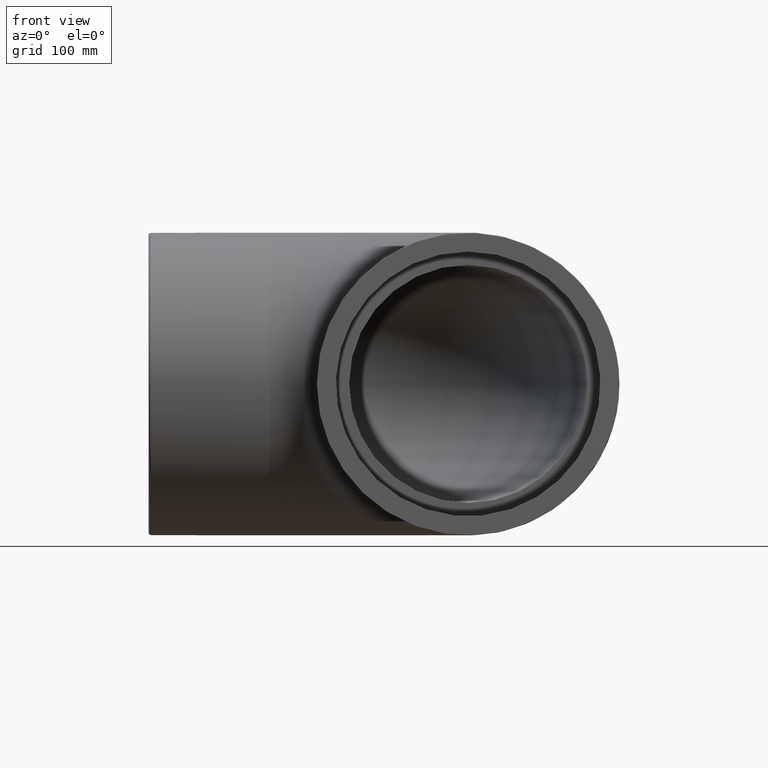
[diagram: clean part render]
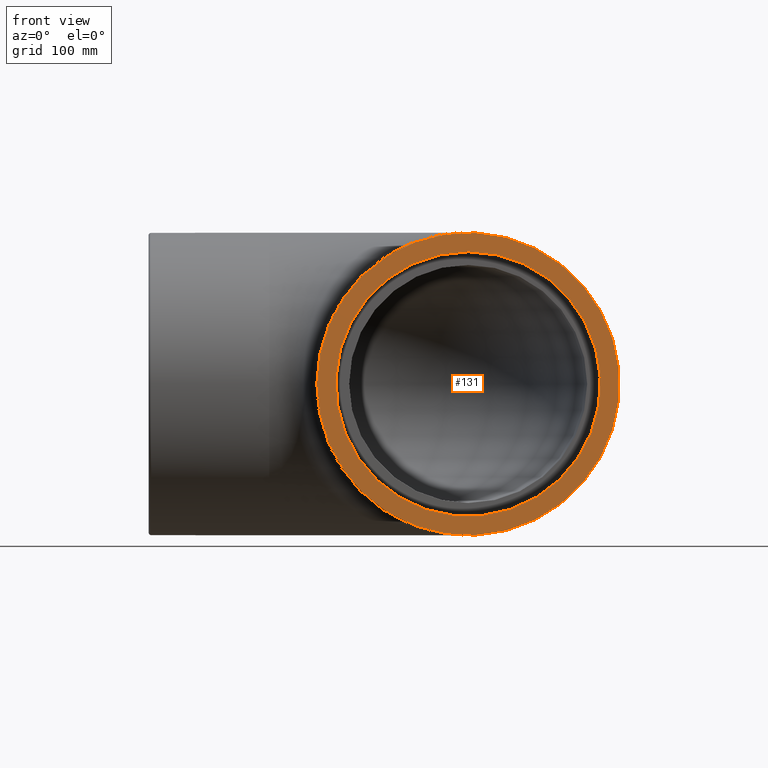
[diagram: same view with one face highlighted and labeled with its STEP entity id]
A machine part, front view. The second image highlights one B-rep face of the part: STEP entity #131.
In plain terms, the highlighted planar face has unit normal (-0, -1, 0).
Its self-contained STEP definition (entity closure, byte-faithful):
#17=PLANE('',#152);
#29=FACE_BOUND('',#58,.T.);
#40=FACE_OUTER_BOUND('',#57,.T.);
#57=EDGE_LOOP('',(#112));
#58=EDGE_LOOP('',(#113));
#70=CIRCLE('',#143,125.);
#75=CIRCLE('',#153,143.);
#81=VERTEX_POINT('',#215);
#86=VERTEX_POINT('',#230);
#92=EDGE_CURVE('',#81,#81,#70,.T.);
#97=EDGE_CURVE('',#86,#86,#75,.T.);
#112=ORIENTED_EDGE('',*,*,#97,.F.);
#113=ORIENTED_EDGE('',*,*,#92,.T.);
#131=ADVANCED_FACE('',(#40,#29),#17,.T.);
#143=AXIS2_PLACEMENT_3D('',#216,#172,#173);
#152=AXIS2_PLACEMENT_3D('',#229,#190,#191);
#153=AXIS2_PLACEMENT_3D('',#231,#192,#193);
#172=DIRECTION('center_axis',(6.12323399573677E-17,1.,0.));
#173=DIRECTION('ref_axis',(0.,0.,-1.));
#190=DIRECTION('center_axis',(-6.12323399573677E-17,-1.,0.));
#191=DIRECTION('ref_axis',(0.,0.,1.));
#192=DIRECTION('center_axis',(6.12323399573677E-17,1.,0.));
#193=DIRECTION('ref_axis',(0.,0.,-1.));
#215=CARTESIAN_POINT('',(-3.38002516564669E-14,-302.,125.));
#216=CARTESIAN_POINT('Origin',(-1.8492166667125E-14,-302.,0.));
#229=CARTESIAN_POINT('Origin',(-143.,-302.,0.));
#230=CARTESIAN_POINT('',(-143.,-302.,0.));
#231=CARTESIAN_POINT('Origin',(-1.8492166667125E-14,-302.,0.));